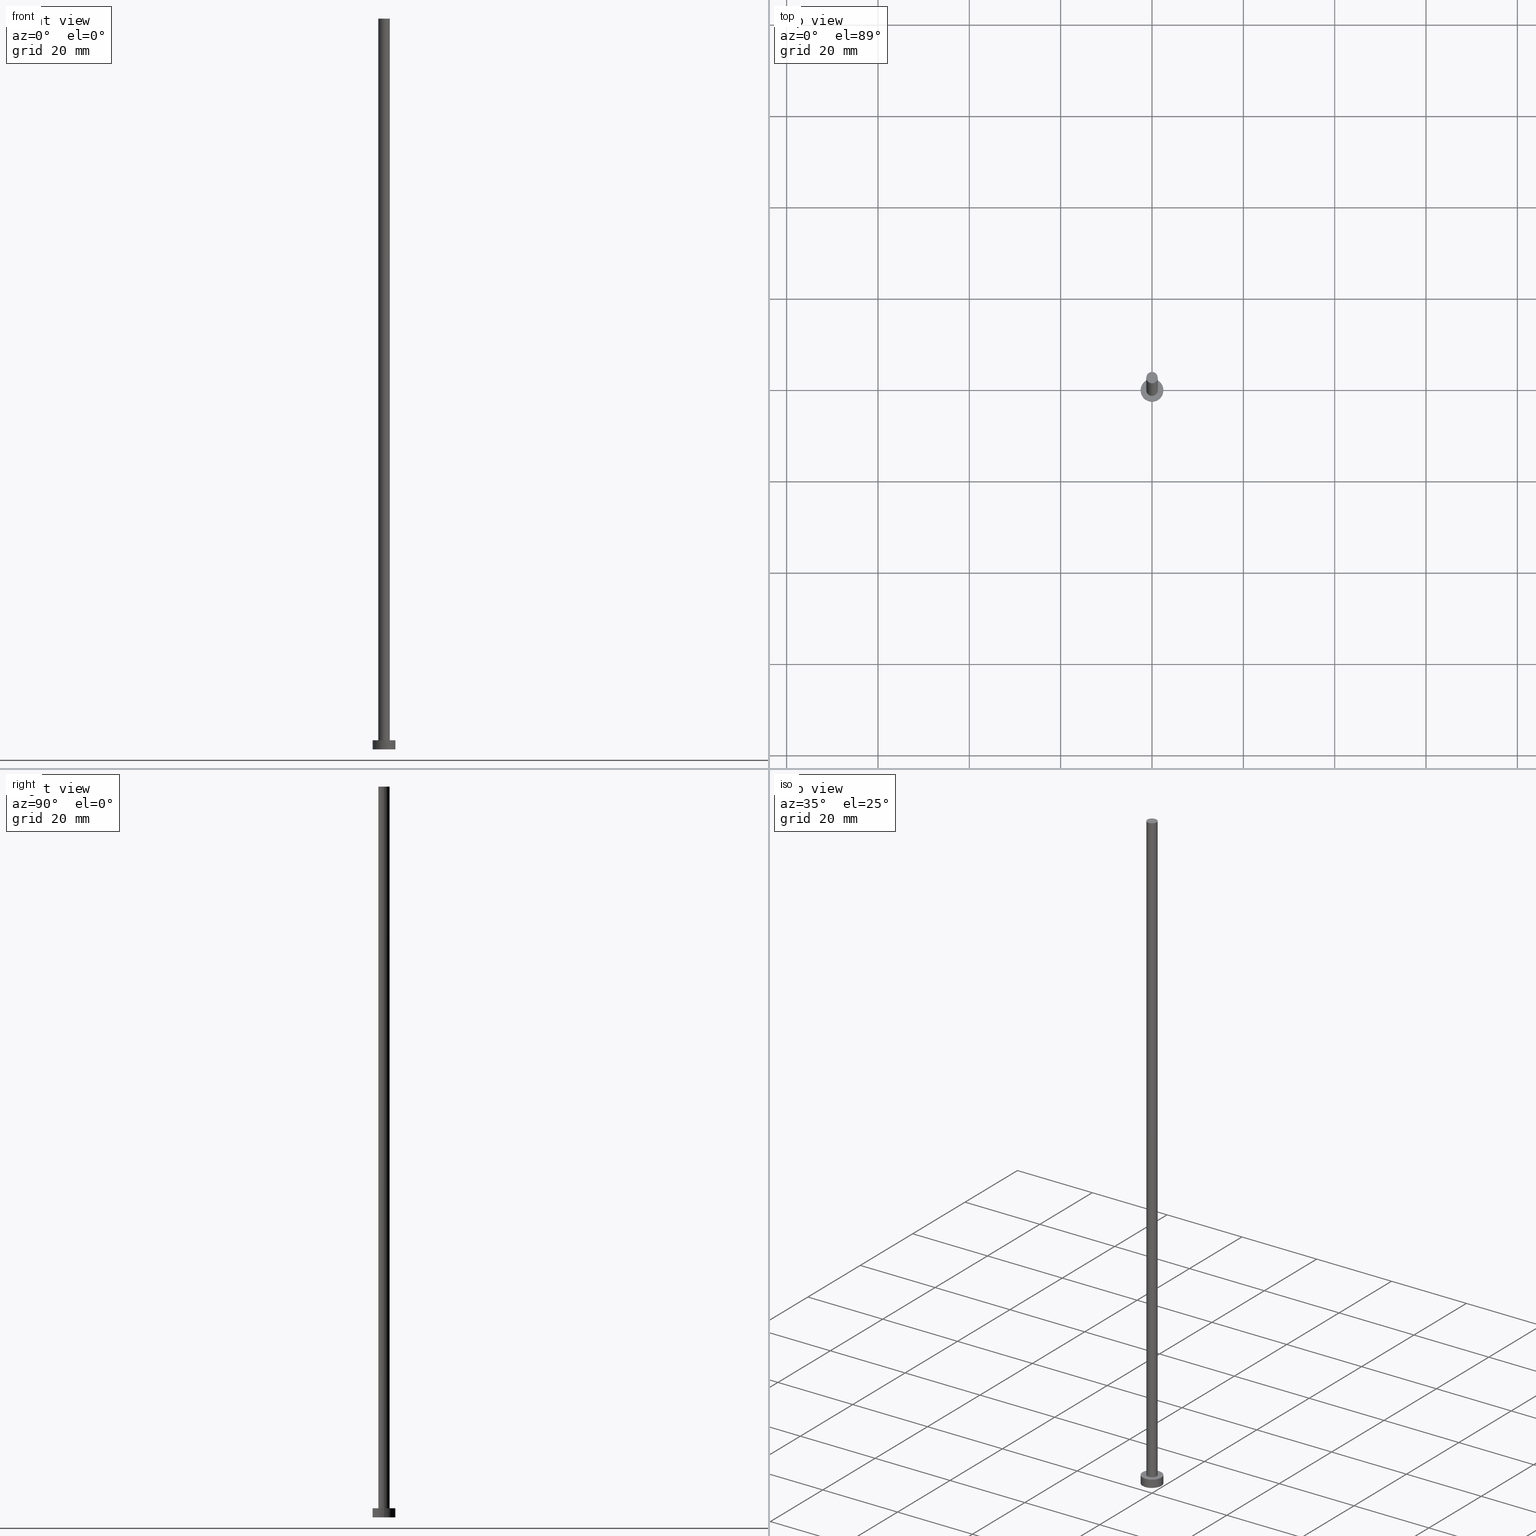
[diagram: canonical four-view strip — front | top / right | iso, engineering-drawing reading convention]
A machine part, canonical four-view strip (front | top / right | iso — engineering-drawing reading convention). The complete STEP part file that produces these views, byte-faithful:
ISO-10303-21;
HEADER;
FILE_DESCRIPTION (( 'STEP AP203' ),
    '1' );
FILE_NAME ('0df4.STEP',
    '2023-02-13T16:40:33',
    ( '' ),
    ( '' ),
    'SwSTEP 2.0',
    'SolidWorks 2019',
    '' );
FILE_SCHEMA (( 'CONFIG_CONTROL_DESIGN' ));
ENDSEC;

DATA;
#1 = APPROVAL_ROLE ( '' ) ;
#2 = CC_DESIGN_DATE_AND_TIME_ASSIGNMENT ( #104, #165, ( #102 ) ) ;
#3 = APPROVAL_DATE_TIME ( #105, #109 ) ;
#4 = FACE_OUTER_BOUND ( 'NONE', #135, .T. ) ;
#5 = DATE_AND_TIME ( #189, #43 ) ;
#6 = DIRECTION ( 'NONE',  ( 0.000000000000000000, 0.000000000000000000, 1.000000000000000000 ) ) ;
#7 = AXIS2_PLACEMENT_3D ( 'NONE', #129, #242, #127 ) ;
#8 = ORIENTED_EDGE ( 'NONE', *, *, #196, .T. ) ;
#9 = ORIENTED_EDGE ( 'NONE', *, *, #70, .T. ) ;
#10 = COORDINATED_UNIVERSAL_TIME_OFFSET ( 1, 0, .AHEAD. ) ;
#11 = ORIENTED_EDGE ( 'NONE', *, *, #130, .F. ) ;
#12 = PLANE ( 'NONE',  #247 ) ;
#13 = CIRCLE ( 'NONE', #82, 1.250000000000000000 ) ;
#14 = AXIS2_PLACEMENT_3D ( 'NONE', #183, #241, #25 ) ;
#15 = DIRECTION ( 'NONE',  ( -0.000000000000000000, -0.000000000000000000, -1.000000000000000000 ) ) ;
#16 = FACE_OUTER_BOUND ( 'NONE', #45, .T. ) ;
#17 = FACE_OUTER_BOUND ( 'NONE', #46, .T. ) ;
#18 = AXIS2_PLACEMENT_3D ( 'NONE', #116, #34, #175 ) ;
#19 = EDGE_CURVE ( 'NONE', #120, #134, #193, .T. ) ;
#20 = APPROVAL_PERSON_ORGANIZATION ( #21, #109, #1 ) ;
#21 = PERSON_AND_ORGANIZATION ( #75, #31 ) ;
#22 = CALENDAR_DATE ( 2023, 13, 2 ) ;
#23 = PERSON_AND_ORGANIZATION ( #75, #31 ) ;
#24 = PERSON_AND_ORGANIZATION ( #75, #31 ) ;
#25 = DIRECTION ( 'NONE',  ( 1.000000000000000000, 0.000000000000000000, 0.000000000000000000 ) ) ;
#26 = CIRCLE ( 'NONE', #14, 2.500000000000000000 ) ;
#27 = APPROVAL_ROLE ( '' ) ;
#28 = ADVANCED_FACE ( 'NONE', ( #72 ), #119, .T. ) ;
#29 = DATE_AND_TIME ( #153, #163 ) ;
#30 = ORIENTED_EDGE ( 'NONE', *, *, #238, .F. ) ;
#31 = ORGANIZATION ( 'NEUR�EN�', 'NEUR�EN�', '' ) ;
#32 = ORIENTED_EDGE ( 'NONE', *, *, #226, .T. ) ;
#33 = APPROVAL_STATUS ( 'not_yet_approved' ) ;
#34 = DIRECTION ( 'NONE',  ( 0.000000000000000000, 0.000000000000000000, 1.000000000000000000 ) ) ;
#35 = LINE ( 'NONE', #126, #73 ) ;
#36 = LINE ( 'NONE', #205, #152 ) ;
#37 = DIRECTION ( 'NONE',  ( 0.000000000000000000, 0.000000000000000000, 1.000000000000000000 ) ) ;
#38 = APPROVAL_PERSON_ORGANIZATION ( #117, #188, #27 ) ;
#39 = DIRECTION ( 'NONE',  ( 1.000000000000000000, 0.000000000000000000, 0.000000000000000000 ) ) ;
#40 = DIRECTION ( 'NONE',  ( 0.000000000000000000, 0.000000000000000000, 1.000000000000000000 ) ) ;
#41 = DIRECTION ( 'NONE',  ( 0.000000000000000000, 0.000000000000000000, 1.000000000000000000 ) ) ;
#42 = DIRECTION ( 'NONE',  ( -0.000000000000000000, -0.000000000000000000, -1.000000000000000000 ) ) ;
#43 = LOCAL_TIME ( 17, 40, 33.00000000000000000, #107 ) ;
#44 = EDGE_CURVE ( 'NONE', #134, #228, #35, .T. ) ;
#45 = EDGE_LOOP ( 'NONE', ( #90, #157 ) ) ;
#46 = EDGE_LOOP ( 'NONE', ( #68, #32 ) ) ;
#47 = AXIS2_PLACEMENT_3D ( 'NONE', #166, #64, #110 ) ;
#48 = CC_DESIGN_PERSON_AND_ORGANIZATION_ASSIGNMENT ( #81, #112, ( #158 ) ) ;
#49 = VERTEX_POINT ( 'NONE', #77 ) ;
#50 = ORIENTED_EDGE ( 'NONE', *, *, #155, .T. ) ;
#51 = MANIFOLD_SOLID_BREP ( 'P�idat vysunut�m3', #137 ) ;
#52 = ORIENTED_EDGE ( 'NONE', *, *, #196, .F. ) ;
#53 = DIRECTION ( 'NONE',  ( 1.000000000000000000, 0.000000000000000000, 0.000000000000000000 ) ) ;
#54 = FACE_OUTER_BOUND ( 'NONE', #66, .T. ) ;
#55 = CYLINDRICAL_SURFACE ( 'NONE', #91, 1.250000000000000000 ) ;
#56 =( GEOMETRIC_REPRESENTATION_CONTEXT ( 3 ) GLOBAL_UNCERTAINTY_ASSIGNED_CONTEXT ( ( #172 ) ) GLOBAL_UNIT_ASSIGNED_CONTEXT ( ( #103, #108, #84 ) ) REPRESENTATION_CONTEXT ( 'NONE', 'WORKASPACE' ) );
#57 = CARTESIAN_POINT ( 'NONE',  ( 0.000000000000000000, 0.000000000000000000, 160.0000000000000000 ) ) ;
#58 = PERSON_AND_ORGANIZATION_ROLE ( 'design_supplier' ) ;
#59 = CARTESIAN_POINT ( 'NONE',  ( 0.000000000000000000, 0.000000000000000000, 160.0000000000000000 ) ) ;
#60 = PERSON_AND_ORGANIZATION_ROLE ( 'classification_officer' ) ;
#61 = CALENDAR_DATE ( 2023, 13, 2 ) ;
#62 = CC_DESIGN_PERSON_AND_ORGANIZATION_ASSIGNMENT ( #24, #85, ( #179 ) ) ;
#63 = PERSON_AND_ORGANIZATION ( #75, #31 ) ;
#64 = DIRECTION ( 'NONE',  ( -0.000000000000000000, -0.000000000000000000, -1.000000000000000000 ) ) ;
#65 = LINE ( 'NONE', #209, #167 ) ;
#66 = EDGE_LOOP ( 'NONE', ( #52, #197, #212, #177 ) ) ;
#67 = DESIGN_CONTEXT ( 'detailed design', #74, 'design' ) ;
#68 = ORIENTED_EDGE ( 'NONE', *, *, #88, .T. ) ;
#69 = VECTOR ( 'NONE', #237, 1000.000000000000000 ) ;
#70 = EDGE_CURVE ( 'NONE', #176, #173, #223, .T. ) ;
#71 = ORIENTED_EDGE ( 'NONE', *, *, #88, .F. ) ;
#72 = FACE_OUTER_BOUND ( 'NONE', #246, .T. ) ;
#73 = VECTOR ( 'NONE', #121, 1000.000000000000000 ) ;
#74 = APPLICATION_CONTEXT ( 'configuration controlled 3d designs of mechanical parts and assemblies' ) ;
#75 = PERSON ( 'NEUR�EN�', 'NEUR�EN�', 'NEUR�EN�', ('NEUR�EN�'), ('NEUR�EN�'), ('NEUR�EN�') ) ;
#76 = DIRECTION ( 'NONE',  ( 1.000000000000000000, 0.000000000000000000, -0.000000000000000000 ) ) ;
#77 = CARTESIAN_POINT ( 'NONE',  ( 2.500000000000000000, 3.061616997868383141E-16, 2.000000000000000000 ) ) ;
#78 = FACE_OUTER_BOUND ( 'NONE', #195, .T. ) ;
#79 = COORDINATED_UNIVERSAL_TIME_OFFSET ( 1, 0, .AHEAD. ) ;
#80 = PERSON_AND_ORGANIZATION ( #75, #31 ) ;
#81 = PERSON_AND_ORGANIZATION ( #75, #31 ) ;
#82 = AXIS2_PLACEMENT_3D ( 'NONE', #202, #37, #39 ) ;
#83 = LOCAL_TIME ( 17, 40, 33.00000000000000000, #208 ) ;
#84 =( NAMED_UNIT ( * ) SI_UNIT ( $, .STERADIAN. ) SOLID_ANGLE_UNIT ( ) );
#85 = PERSON_AND_ORGANIZATION_ROLE ( 'creator' ) ;
#86 = APPROVAL_DATE_TIME ( #192, #188 ) ;
#87 = VERTEX_POINT ( 'NONE', #164 ) ;
#88 = EDGE_CURVE ( 'NONE', #87, #49, #234, .T. ) ;
#89 = CALENDAR_DATE ( 2023, 13, 2 ) ;
#90 = ORIENTED_EDGE ( 'NONE', *, *, #217, .F. ) ;
#91 = AXIS2_PLACEMENT_3D ( 'NONE', #59, #125, #255 ) ;
#92 = ORIENTED_EDGE ( 'NONE', *, *, #44, .F. ) ;
#93 = CC_DESIGN_PERSON_AND_ORGANIZATION_ASSIGNMENT ( #169, #58, ( #179 ) ) ;
#94 = CARTESIAN_POINT ( 'NONE',  ( 0.000000000000000000, 0.000000000000000000, 2.000000000000000000 ) ) ;
#95 = AXIS2_PLACEMENT_3D ( 'NONE', #94, #160, #101 ) ;
#96 = DIRECTION ( 'NONE',  ( 0.000000000000000000, 0.000000000000000000, 1.000000000000000000 ) ) ;
#97 = CIRCLE ( 'NONE', #239, 1.250000000000000000 ) ;
#98 = DIRECTION ( 'NONE',  ( 1.000000000000000000, 0.000000000000000000, -0.000000000000000000 ) ) ;
#99 = CC_DESIGN_PERSON_AND_ORGANIZATION_ASSIGNMENT ( #23, #186, ( #154 ) ) ;
#100 = DIRECTION ( 'NONE',  ( 0.000000000000000000, 0.000000000000000000, 1.000000000000000000 ) ) ;
#101 = DIRECTION ( 'NONE',  ( 1.000000000000000000, 0.000000000000000000, 0.000000000000000000 ) ) ;
#102 = SECURITY_CLASSIFICATION ( '', '', #184 ) ;
#103 =( LENGTH_UNIT ( ) NAMED_UNIT ( * ) SI_UNIT ( .MILLI., .METRE. ) );
#104 = DATE_AND_TIME ( #22, #83 ) ;
#105 = DATE_AND_TIME ( #61, #207 ) ;
#106 = EDGE_CURVE ( 'NONE', #228, #227, #161, .T. ) ;
#107 = COORDINATED_UNIVERSAL_TIME_OFFSET ( 1, 0, .AHEAD. ) ;
#108 =( NAMED_UNIT ( * ) PLANE_ANGLE_UNIT ( ) SI_UNIT ( $, .RADIAN. ) );
#109 = APPROVAL ( #185, 'NEUR�EN�' ) ;
#110 = DIRECTION ( 'NONE',  ( -1.000000000000000000, 0.000000000000000000, 0.000000000000000000 ) ) ;
#111 = APPROVAL_PERSON_ORGANIZATION ( #63, #252, #144 ) ;
#112 = PERSON_AND_ORGANIZATION_ROLE ( 'creator' ) ;
#113 = AXIS2_PLACEMENT_3D ( 'NONE', #182, #40, #219 ) ;
#114 = CC_DESIGN_DATE_AND_TIME_ASSIGNMENT ( #29, #248, ( #158 ) ) ;
#115 = EDGE_LOOP ( 'NONE', ( #11, #216 ) ) ;
#116 = CARTESIAN_POINT ( 'NONE',  ( 0.000000000000000000, 0.000000000000000000, 160.0000000000000000 ) ) ;
#117 = PERSON_AND_ORGANIZATION ( #75, #31 ) ;
#118 = PRODUCT_DEFINITION_SHAPE ( 'NONE', 'NONE',  #158 ) ;
#119 = CYLINDRICAL_SURFACE ( 'NONE', #146, 2.500000000000000000 ) ;
#120 = VERTEX_POINT ( 'NONE', #231 ) ;
#121 = DIRECTION ( 'NONE',  ( -0.000000000000000000, -0.000000000000000000, -1.000000000000000000 ) ) ;
#122 = ADVANCED_FACE ( 'NONE', ( #78 ), #139, .T. ) ;
#123 = AXIS2_PLACEMENT_3D ( 'NONE', #190, #6, #206 ) ;
#124 = DIRECTION ( 'NONE',  ( 0.000000000000000000, 0.000000000000000000, 1.000000000000000000 ) ) ;
#125 = DIRECTION ( 'NONE',  ( -0.000000000000000000, -0.000000000000000000, -1.000000000000000000 ) ) ;
#126 = CARTESIAN_POINT ( 'NONE',  ( 1.250000000000000000, 1.530808498934191571E-16, 160.0000000000000000 ) ) ;
#127 = DIRECTION ( 'NONE',  ( 1.000000000000000000, 0.000000000000000000, 0.000000000000000000 ) ) ;
#128 = AXIS2_PLACEMENT_3D ( 'NONE', #236, #41, #98 ) ;
#129 = CARTESIAN_POINT ( 'NONE',  ( 0.000000000000000000, 0.000000000000000000, 2.000000000000000000 ) ) ;
#130 = EDGE_CURVE ( 'NONE', #227, #228, #13, .T. ) ;
#131 = ORIENTED_EDGE ( 'NONE', *, *, #238, .T. ) ;
#132 = AXIS2_PLACEMENT_3D ( 'NONE', #159, #251, #218 ) ;
#133 = CIRCLE ( 'NONE', #7, 2.500000000000000000 ) ;
#134 = VERTEX_POINT ( 'NONE', #141 ) ;
#135 = EDGE_LOOP ( 'NONE', ( #92, #136, #171, #200 ) ) ;
#136 = ORIENTED_EDGE ( 'NONE', *, *, #19, .F. ) ;
#137 = CLOSED_SHELL ( 'NONE', ( #148, #28, #122, #211, #168, #249, #191 ) ) ;
#138 = DIRECTION ( 'NONE',  ( -1.000000000000000000, 0.000000000000000000, 0.000000000000000000 ) ) ;
#139 = CYLINDRICAL_SURFACE ( 'NONE', #132, 2.500000000000000000 ) ;
#140 = EDGE_CURVE ( 'NONE', #120, #227, #36, .T. ) ;
#141 = CARTESIAN_POINT ( 'NONE',  ( 1.250000000000000000, 1.530808498934191571E-16, 160.0000000000000000 ) ) ;
#142 = PLANE ( 'NONE',  #113 ) ;
#143 = CARTESIAN_POINT ( 'NONE',  ( 0.000000000000000000, 0.000000000000000000, 0.000000000000000000 ) ) ;
#144 = APPROVAL_ROLE ( '' ) ;
#145 = LINE ( 'NONE', #233, #69 ) ;
#146 = AXIS2_PLACEMENT_3D ( 'NONE', #199, #229, #138 ) ;
#147 = SHAPE_DEFINITION_REPRESENTATION ( #118, #187 ) ;
#148 = ADVANCED_FACE ( 'NONE', ( #54 ), #55, .T. ) ;
#149 = APPROVAL_STATUS ( 'not_yet_approved' ) ;
#150 = CARTESIAN_POINT ( 'NONE',  ( 1.250000000000000000, 1.530808498934191571E-16, 2.000000000000000000 ) ) ;
#151 = MECHANICAL_CONTEXT ( 'NONE', #243, 'mechanical' ) ;
#152 = VECTOR ( 'NONE', #15, 1000.000000000000000 ) ;
#153 = CALENDAR_DATE ( 2023, 13, 2 ) ;
#154 = PRODUCT ( '0df4', '0df4', '', ( #151 ) ) ;
#155 = EDGE_CURVE ( 'NONE', #49, #176, #145, .T. ) ;
#156 = EDGE_LOOP ( 'NONE', ( #245, #8 ) ) ;
#157 = ORIENTED_EDGE ( 'NONE', *, *, #70, .F. ) ;
#158 = PRODUCT_DEFINITION ( 'NEZN�M�', '', #179, #67 ) ;
#159 = CARTESIAN_POINT ( 'NONE',  ( 0.000000000000000000, 0.000000000000000000, 2.000000000000000000 ) ) ;
#160 = DIRECTION ( 'NONE',  ( 0.000000000000000000, 0.000000000000000000, 1.000000000000000000 ) ) ;
#161 = CIRCLE ( 'NONE', #95, 1.250000000000000000 ) ;
#162 = CARTESIAN_POINT ( 'NONE',  ( 2.500000000000000000, 3.061616997868383141E-16, 0.000000000000000000 ) ) ;
#163 = LOCAL_TIME ( 17, 40, 33.00000000000000000, #174 ) ;
#164 = CARTESIAN_POINT ( 'NONE',  ( -2.500000000000000000, 0.000000000000000000, 2.000000000000000000 ) ) ;
#165 = DATE_TIME_ROLE ( 'classification_date' ) ;
#166 = CARTESIAN_POINT ( 'NONE',  ( 0.000000000000000000, 0.000000000000000000, 160.0000000000000000 ) ) ;
#167 = VECTOR ( 'NONE', #42, 1000.000000000000000 ) ;
#168 = ADVANCED_FACE ( 'NONE', ( #16 ), #12, .F. ) ;
#169 = PERSON_AND_ORGANIZATION ( #75, #31 ) ;
#170 = APPLICATION_PROTOCOL_DEFINITION ( 'international standard', 'config_control_design', 1994, #74 ) ;
#171 = ORIENTED_EDGE ( 'NONE', *, *, #140, .T. ) ;
#172 = UNCERTAINTY_MEASURE_WITH_UNIT (LENGTH_MEASURE( 1.000000000000000082E-05 ), #103, 'distance_accuracy_value', 'NONE');
#173 = VERTEX_POINT ( 'NONE', #180 ) ;
#174 = COORDINATED_UNIVERSAL_TIME_OFFSET ( 1, 0, .AHEAD. ) ;
#175 = DIRECTION ( 'NONE',  ( 1.000000000000000000, 0.000000000000000000, 0.000000000000000000 ) ) ;
#176 = VERTEX_POINT ( 'NONE', #162 ) ;
#177 = ORIENTED_EDGE ( 'NONE', *, *, #140, .F. ) ;
#178 = AXIS2_PLACEMENT_3D ( 'NONE', #143, #124, #53 ) ;
#179 = PRODUCT_DEFINITION_FORMATION_WITH_SPECIFIED_SOURCE ( 'LIBOVOLN�', '', #154, .NOT_KNOWN. ) ;
#180 = CARTESIAN_POINT ( 'NONE',  ( -2.500000000000000000, 0.000000000000000000, 0.000000000000000000 ) ) ;
#181 = DIRECTION ( 'NONE',  ( 1.000000000000000000, 0.000000000000000000, 0.000000000000000000 ) ) ;
#182 = CARTESIAN_POINT ( 'NONE',  ( 0.000000000000000000, 0.000000000000000000, 2.000000000000000000 ) ) ;
#183 = CARTESIAN_POINT ( 'NONE',  ( 0.000000000000000000, 0.000000000000000000, 0.000000000000000000 ) ) ;
#184 = SECURITY_CLASSIFICATION_LEVEL ( 'unclassified' ) ;
#185 = APPROVAL_STATUS ( 'not_yet_approved' ) ;
#186 = PERSON_AND_ORGANIZATION_ROLE ( 'design_owner' ) ;
#187 = ADVANCED_BREP_SHAPE_REPRESENTATION ( '0df4', ( #51, #123 ), #56 ) ;
#188 = APPROVAL ( #33, 'NEUR�EN�' ) ;
#189 = CALENDAR_DATE ( 2023, 13, 2 ) ;
#190 = CARTESIAN_POINT ( 'NONE',  ( 0.000000000000000000, 0.000000000000000000, 0.000000000000000000 ) ) ;
#191 = ADVANCED_FACE ( 'NONE', ( #232 ), #222, .T. ) ;
#192 = DATE_AND_TIME ( #89, #203 ) ;
#193 = CIRCLE ( 'NONE', #18, 1.250000000000000000 ) ;
#194 = CC_DESIGN_APPROVAL ( #252, ( #102 ) ) ;
#195 = EDGE_LOOP ( 'NONE', ( #225, #71, #131, #214 ) ) ;
#196 = EDGE_CURVE ( 'NONE', #134, #120, #97, .T. ) ;
#197 = ORIENTED_EDGE ( 'NONE', *, *, #44, .T. ) ;
#198 = CC_DESIGN_SECURITY_CLASSIFICATION ( #102, ( #179 ) ) ;
#199 = CARTESIAN_POINT ( 'NONE',  ( 0.000000000000000000, 0.000000000000000000, 2.000000000000000000 ) ) ;
#200 = ORIENTED_EDGE ( 'NONE', *, *, #130, .T. ) ;
#201 = CC_DESIGN_PERSON_AND_ORGANIZATION_ASSIGNMENT ( #80, #60, ( #102 ) ) ;
#202 = CARTESIAN_POINT ( 'NONE',  ( 0.000000000000000000, 0.000000000000000000, 2.000000000000000000 ) ) ;
#203 = LOCAL_TIME ( 17, 40, 33.00000000000000000, #10 ) ;
#204 = CARTESIAN_POINT ( 'NONE',  ( 0.000000000000000000, 0.000000000000000000, 0.000000000000000000 ) ) ;
#205 = CARTESIAN_POINT ( 'NONE',  ( -1.250000000000000000, 0.000000000000000000, 160.0000000000000000 ) ) ;
#206 = DIRECTION ( 'NONE',  ( 1.000000000000000000, 0.000000000000000000, 0.000000000000000000 ) ) ;
#207 = LOCAL_TIME ( 17, 40, 33.00000000000000000, #79 ) ;
#208 = COORDINATED_UNIVERSAL_TIME_OFFSET ( 1, 0, .AHEAD. ) ;
#209 = CARTESIAN_POINT ( 'NONE',  ( -2.500000000000000000, 0.000000000000000000, 2.000000000000000000 ) ) ;
#210 = APPLICATION_PROTOCOL_DEFINITION ( 'international standard', 'config_control_design', 1994, #243 ) ;
#211 = ADVANCED_FACE ( 'NONE', ( #253, #17 ), #142, .T. ) ;
#212 = ORIENTED_EDGE ( 'NONE', *, *, #106, .T. ) ;
#213 = AXIS2_PLACEMENT_3D ( 'NONE', #250, #254, #221 ) ;
#214 = ORIENTED_EDGE ( 'NONE', *, *, #217, .T. ) ;
#215 = ORIENTED_EDGE ( 'NONE', *, *, #226, .F. ) ;
#216 = ORIENTED_EDGE ( 'NONE', *, *, #106, .F. ) ;
#217 = EDGE_CURVE ( 'NONE', #173, #176, #26, .T. ) ;
#218 = DIRECTION ( 'NONE',  ( -1.000000000000000000, 0.000000000000000000, 0.000000000000000000 ) ) ;
#219 = DIRECTION ( 'NONE',  ( 1.000000000000000000, 0.000000000000000000, -0.000000000000000000 ) ) ;
#220 = PRODUCT_RELATED_PRODUCT_CATEGORY ( 'detail', '', ( #154 ) ) ;
#221 = DIRECTION ( 'NONE',  ( 1.000000000000000000, 0.000000000000000000, 0.000000000000000000 ) ) ;
#222 = PLANE ( 'NONE',  #128 ) ;
#223 = CIRCLE ( 'NONE', #178, 2.500000000000000000 ) ;
#224 = CARTESIAN_POINT ( 'NONE',  ( -1.250000000000000000, 0.000000000000000000, 2.000000000000000000 ) ) ;
#225 = ORIENTED_EDGE ( 'NONE', *, *, #155, .F. ) ;
#226 = EDGE_CURVE ( 'NONE', #49, #87, #133, .T. ) ;
#227 = VERTEX_POINT ( 'NONE', #224 ) ;
#228 = VERTEX_POINT ( 'NONE', #150 ) ;
#229 = DIRECTION ( 'NONE',  ( -0.000000000000000000, -0.000000000000000000, -1.000000000000000000 ) ) ;
#230 = CC_DESIGN_APPROVAL ( #188, ( #179 ) ) ;
#231 = CARTESIAN_POINT ( 'NONE',  ( -1.250000000000000000, 0.000000000000000000, 160.0000000000000000 ) ) ;
#232 = FACE_OUTER_BOUND ( 'NONE', #156, .T. ) ;
#233 = CARTESIAN_POINT ( 'NONE',  ( 2.500000000000000000, 3.061616997868383141E-16, 2.000000000000000000 ) ) ;
#234 = CIRCLE ( 'NONE', #213, 2.500000000000000000 ) ;
#235 = CC_DESIGN_APPROVAL ( #109, ( #158 ) ) ;
#236 = CARTESIAN_POINT ( 'NONE',  ( 0.000000000000000000, 0.000000000000000000, 160.0000000000000000 ) ) ;
#237 = DIRECTION ( 'NONE',  ( -0.000000000000000000, -0.000000000000000000, -1.000000000000000000 ) ) ;
#238 = EDGE_CURVE ( 'NONE', #87, #173, #65, .T. ) ;
#239 = AXIS2_PLACEMENT_3D ( 'NONE', #57, #100, #181 ) ;
#240 = APPROVAL_DATE_TIME ( #5, #252 ) ;
#241 = DIRECTION ( 'NONE',  ( 0.000000000000000000, 0.000000000000000000, 1.000000000000000000 ) ) ;
#242 = DIRECTION ( 'NONE',  ( 0.000000000000000000, 0.000000000000000000, 1.000000000000000000 ) ) ;
#243 = APPLICATION_CONTEXT ( 'configuration controlled 3d designs of mechanical parts and assemblies' ) ;
#244 = CYLINDRICAL_SURFACE ( 'NONE', #47, 1.250000000000000000 ) ;
#245 = ORIENTED_EDGE ( 'NONE', *, *, #19, .T. ) ;
#246 = EDGE_LOOP ( 'NONE', ( #215, #50, #9, #30 ) ) ;
#247 = AXIS2_PLACEMENT_3D ( 'NONE', #204, #96, #76 ) ;
#248 = DATE_TIME_ROLE ( 'creation_date' ) ;
#249 = ADVANCED_FACE ( 'NONE', ( #4 ), #244, .T. ) ;
#250 = CARTESIAN_POINT ( 'NONE',  ( 0.000000000000000000, 0.000000000000000000, 2.000000000000000000 ) ) ;
#251 = DIRECTION ( 'NONE',  ( -0.000000000000000000, -0.000000000000000000, -1.000000000000000000 ) ) ;
#252 = APPROVAL ( #149, 'NEUR�EN�' ) ;
#253 = FACE_BOUND ( 'NONE', #115, .T. ) ;
#254 = DIRECTION ( 'NONE',  ( 0.000000000000000000, 0.000000000000000000, 1.000000000000000000 ) ) ;
#255 = DIRECTION ( 'NONE',  ( -1.000000000000000000, 0.000000000000000000, 0.000000000000000000 ) ) ;
ENDSEC;
END-ISO-10303-21;
